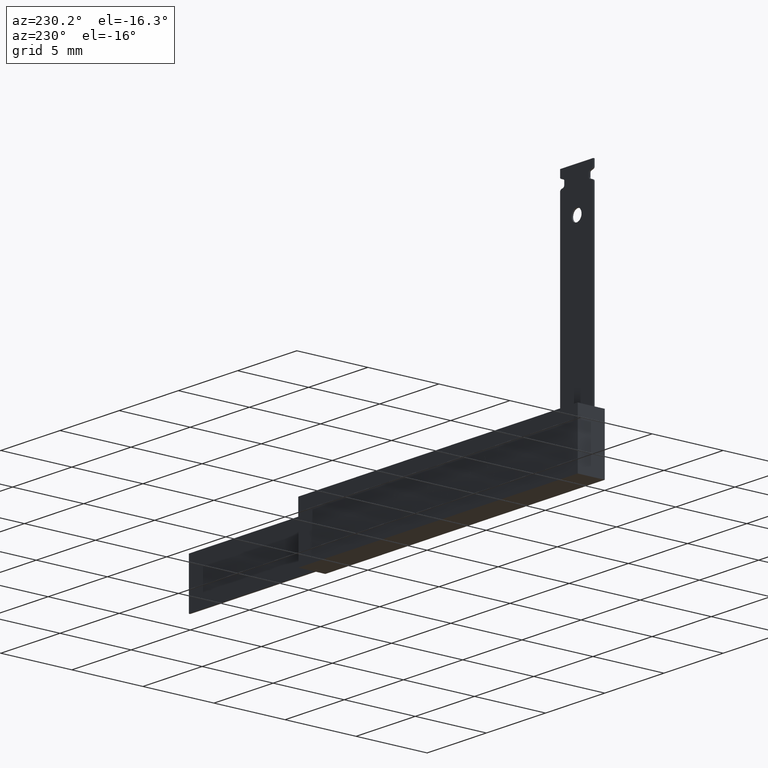
[diagram: clean part render]
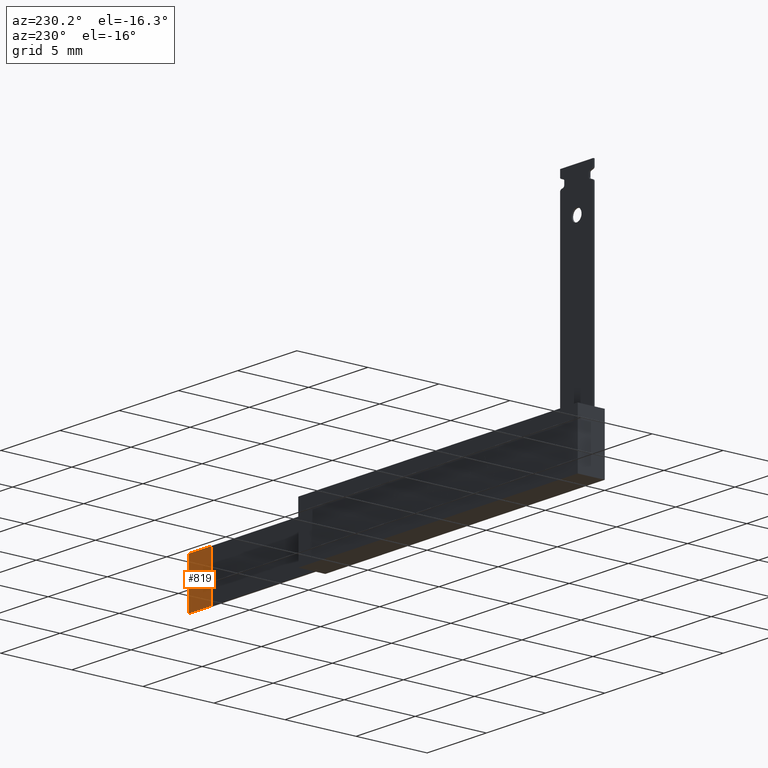
[diagram: same view with one face highlighted and labeled with its STEP entity id]
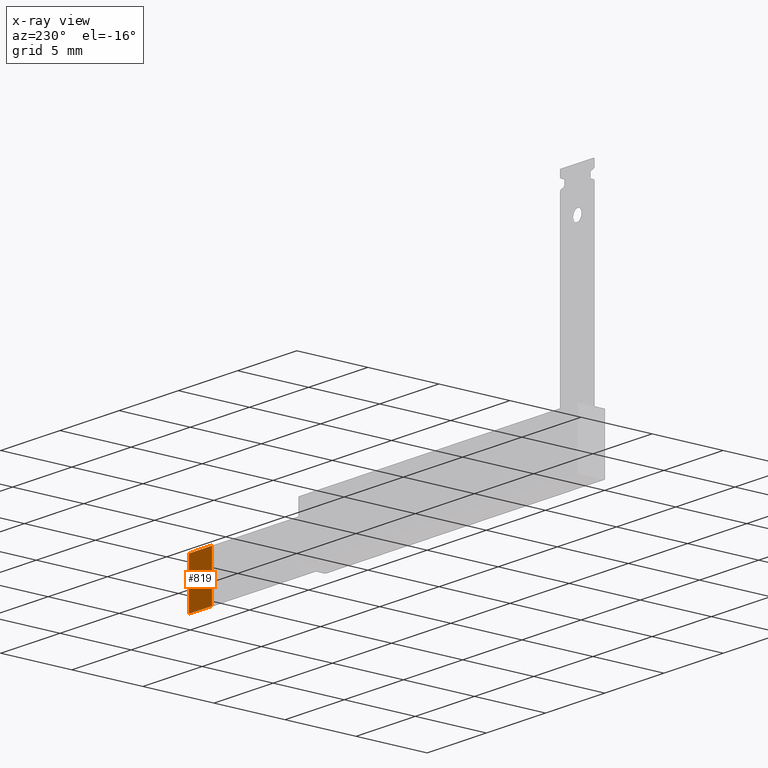
[diagram: x-ray of the same camera — body ghosted, the highlighted face saturated]
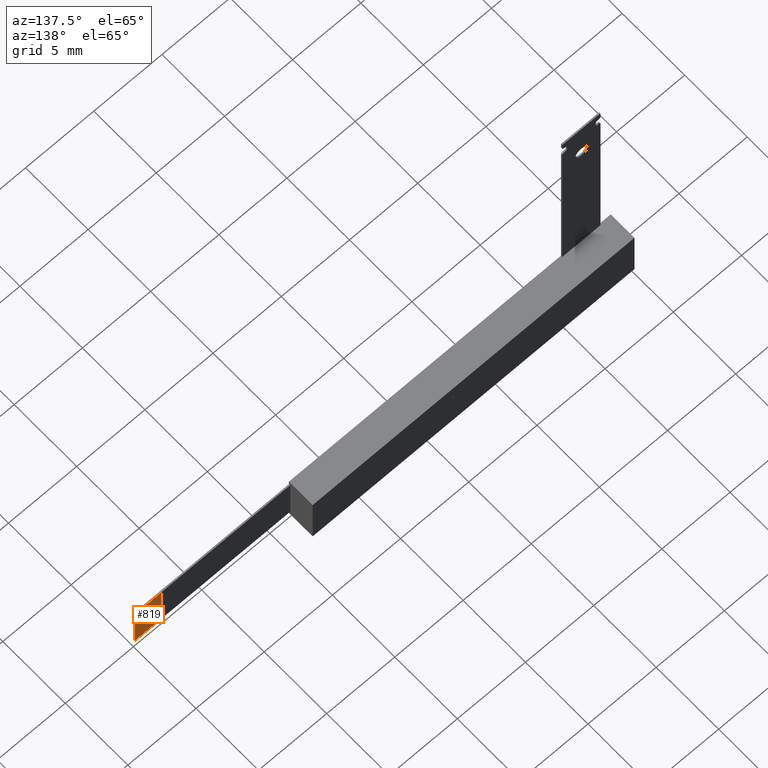
[diagram: same view with one face highlighted and labeled with its STEP entity id]
A machine part, auxiliary view. The second image highlights one B-rep face of the part: STEP entity #819.
The next image is the same camera in x-ray: the body ghosted, the highlighted face saturated — about 0% of this face is hidden behind the body in this view.
A second angle (auxiliary view) of the same face is appended — the face is thin or edge-on in the first view.
In plain terms, the highlighted planar face has unit normal (0, -1, 0).
Its self-contained STEP definition (entity closure, byte-faithful):
#43 = ORIENTED_EDGE ( 'NONE', *, *, #1715, .F. ) ;
#86 = DIRECTION ( 'NONE',  ( -1.000000000000000000, -0.0000000000000000000, -0.0000000000000000000 ) ) ;
#98 = CARTESIAN_POINT ( 'NONE',  ( 35.00000000000000000, 0.1010000000000000100, -0.3101830336703397300 ) ) ;
#154 = VERTEX_POINT ( 'NONE', #2251 ) ;
#283 = VECTOR ( 'NONE', #86, 1000.000000000000000 ) ;
#506 = LINE ( 'NONE', #824, #2908 ) ;
#559 = DIRECTION ( 'NONE',  ( -0.0000000000000000000, -0.0000000000000000000, 1.000000000000000000 ) ) ;
#581 = VECTOR ( 'NONE', #2624, 1000.000000000000000 ) ;
#597 = DIRECTION ( 'NONE',  ( 0.0000000000000000000, -0.0000000000000000000, -1.000000000000000000 ) ) ;
#754 = CARTESIAN_POINT ( 'NONE',  ( 23.60000000000000900, 0.1010000000000000100, -3.696989483164532700 ) ) ;
#819 = ADVANCED_FACE ( 'NONE', ( #2088 ), #2707, .F. ) ;
#824 = CARTESIAN_POINT ( 'NONE',  ( 33.06149497751897600, 0.1010000000000000100, -3.696989483164532700 ) ) ;
#916 = AXIS2_PLACEMENT_3D ( 'NONE', #2232, #2009, #597 ) ;
#1046 = LINE ( 'NONE', #754, #581 ) ;
#1185 = VERTEX_POINT ( 'NONE', #1900 ) ;
#1223 = EDGE_CURVE ( 'NONE', #1571, #154, #2525, .T. ) ;
#1419 = LINE ( 'NONE', #1487, #283 ) ;
#1422 = VECTOR ( 'NONE', #559, 1000.000000000000000 ) ;
#1473 = CARTESIAN_POINT ( 'NONE',  ( 33.06149497751897600, 0.1010000000000000100, -0.3101830336703397300 ) ) ;
#1487 = CARTESIAN_POINT ( 'NONE',  ( 23.60000000000000900, 0.1010000000000000100, -0.3101830336703397300 ) ) ;
#1571 = VERTEX_POINT ( 'NONE', #1650 ) ;
#1611 = EDGE_CURVE ( 'NONE', #154, #2311, #1419, .T. ) ;
#1650 = CARTESIAN_POINT ( 'NONE',  ( 35.00000000000000000, 0.1010000000000000100, -3.696989483164532700 ) ) ;
#1715 = EDGE_CURVE ( 'NONE', #1185, #1571, #1046, .T. ) ;
#1781 = DIRECTION ( 'NONE',  ( -0.0000000000000000000, -0.0000000000000000000, -1.000000000000000000 ) ) ;
#1900 = CARTESIAN_POINT ( 'NONE',  ( 33.06149497751897600, 0.1010000000000000100, -3.696989483164532700 ) ) ;
#1930 = ORIENTED_EDGE ( 'NONE', *, *, #1223, .F. ) ;
#1962 = ORIENTED_EDGE ( 'NONE', *, *, #2006, .F. ) ;
#2006 = EDGE_CURVE ( 'NONE', #2311, #1185, #506, .T. ) ;
#2009 = DIRECTION ( 'NONE',  ( 0.0000000000000000000, -1.000000000000000000, 0.0000000000000000000 ) ) ;
#2088 = FACE_OUTER_BOUND ( 'NONE', #2929, .T. ) ;
#2232 = CARTESIAN_POINT ( 'NONE',  ( 0.0000000000000000000, 0.1010000000000000100, 0.0000000000000000000 ) ) ;
#2251 = CARTESIAN_POINT ( 'NONE',  ( 35.00000000000000000, 0.1010000000000000100, -0.3101830336703397300 ) ) ;
#2311 = VERTEX_POINT ( 'NONE', #1473 ) ;
#2525 = LINE ( 'NONE', #98, #1422 ) ;
#2624 = DIRECTION ( 'NONE',  ( 1.000000000000000000, 0.0000000000000000000, 0.0000000000000000000 ) ) ;
#2707 = PLANE ( 'NONE',  #916 ) ;
#2813 = ORIENTED_EDGE ( 'NONE', *, *, #1611, .F. ) ;
#2908 = VECTOR ( 'NONE', #1781, 1000.000000000000000 ) ;
#2929 = EDGE_LOOP ( 'NONE', ( #1962, #2813, #1930, #43 ) ) ;